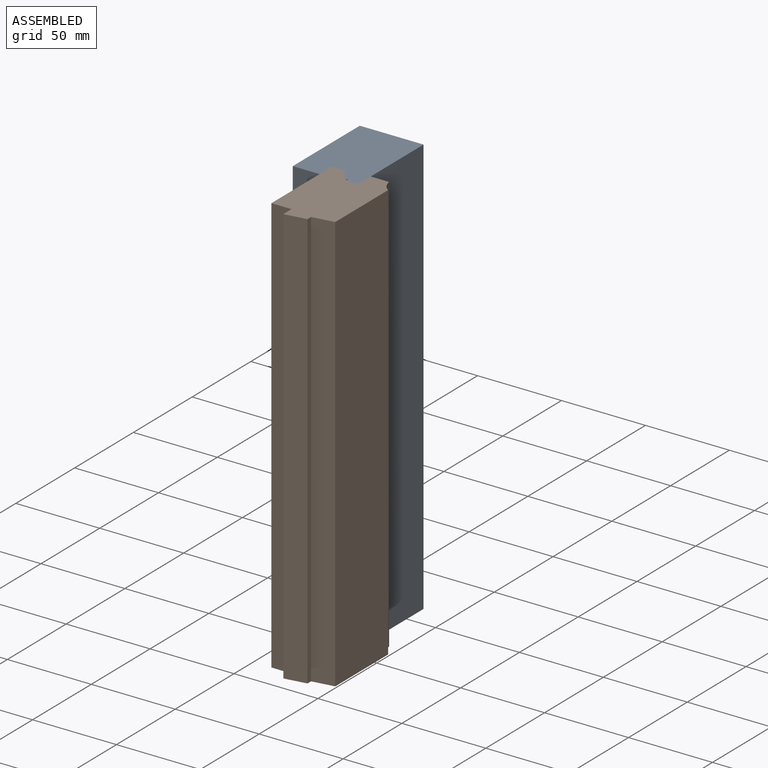
[diagram: assembled view]
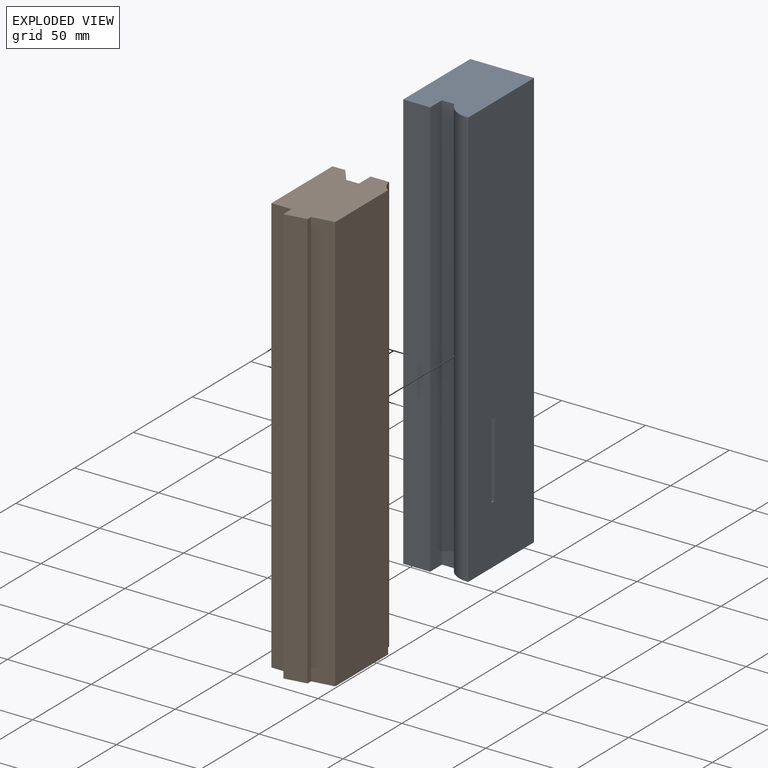
[diagram: exploded view]
GUIDED TOUR — FREECAD ASSEMBLY "assembly"

This assembly has 2 components, labeled P0..P1 below (a component is one placed body or linked part; the same part can appear more than once), held together by 0 modeled joints plus 1 derived contact edge. A joint is a constraint between two components; its type names the relative motion it leaves free:
  CONTACT — a derived adjacency edge — the two components touch in the source model (clearance under 2% of the assembly's diagonal); it is measured from the geometry, not a modeled constraint.
Axis/direction vectors are unit vectors and 'through' points are millimeter coordinates, both in the assembly's world frame.

MATES
  1. CONTACT "contact_0_1": P0 <-> P1, contact direction (0.000, -1.000, 0.000) through (30.72, 2.19, 0.00) mm (derived from contact, not a modeled constraint)

ASSEMBLY ORDER
  1. P1 — the base component [order verified]
  2. P0 [order verified]
Order-tag legend:
  [order verified] — this step's position reverses a verified removal order: the component was checked to insert without passing through the ones already placed.

Of the 2 components, 2 carry a construction recipe — the FreeCAD feature program (sketches with constraints, then the solid features that consume them) that regenerates the part from scratch, quoted from this document or from the linked companion document it references; the rest are supplied as boundary geometry only. The tour below walks the components in assembly order: each is shown spotlighted twice — in the assembled view, then in the exploded view, where a leader line traces a displaced component back to its assembled socket (components that stay in place when exploded have no leader line; saturated green if recipe-attached, orange if geometry-only; every other component desaturated gray) — followed by its recipe or geometry summary and the mates that hold it.
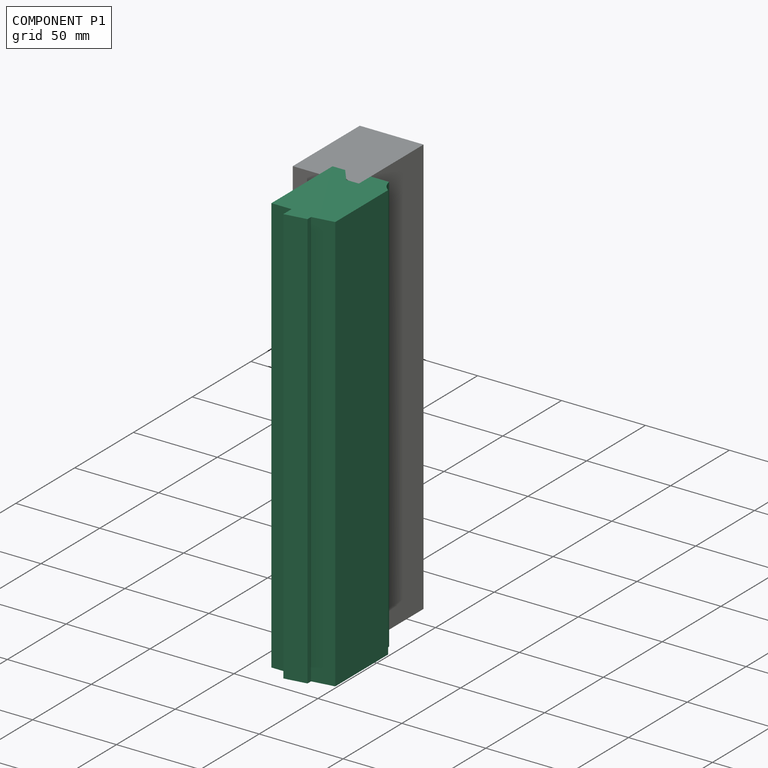
[diagram: component P1 — assembled]
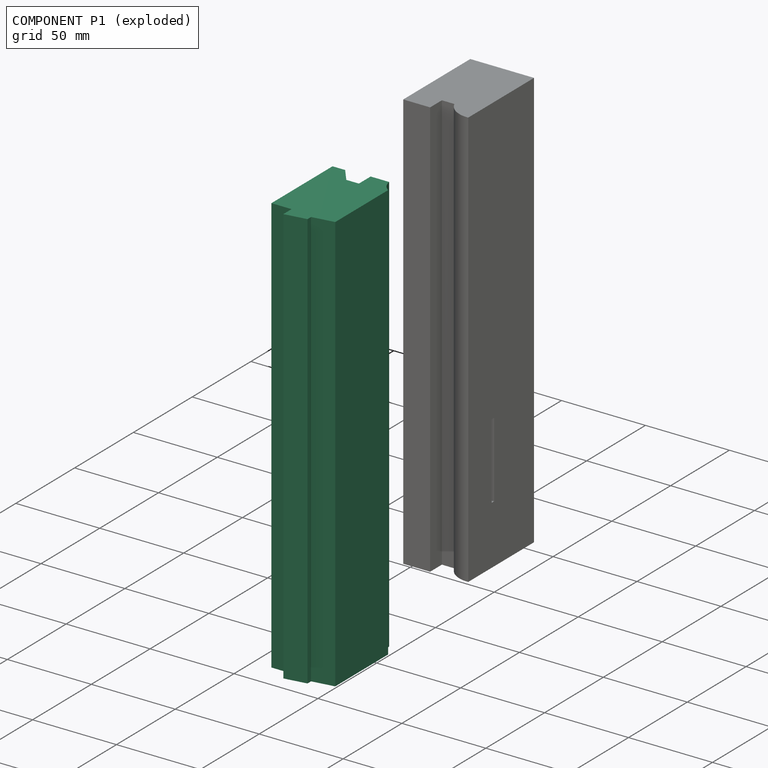
[diagram: component P1 — exploded]
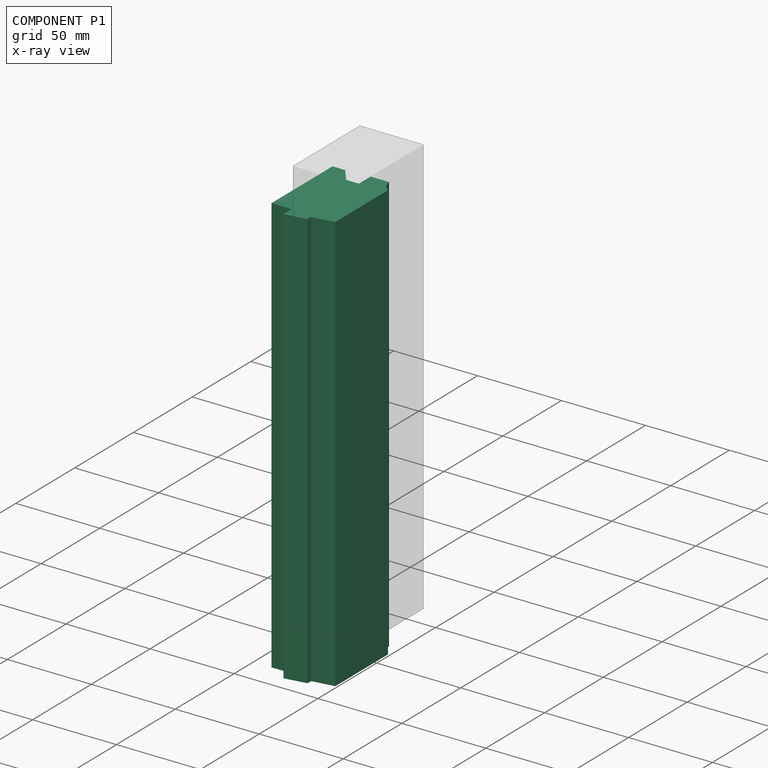
[diagram: component P1 — x-ray view]
COMPONENT P1 — recipe-attached ("fensterrahmen", a linked part whose construction recipe lives in a companion FreeCAD document of the same project; that document's serialized recipe follows).
Held by: resting contact with P0 (derived edge).
Construction recipe (the companion document, serialized — sketch geometry with constraints, then the solid features built on it; lengths are millimeters unless a unit is written):

FCSTD DOCUMENT  (FreeCAD 2022.709R28846 (Git))
Label: fensterrahmen_hinternute
License: All rights reserved
LicenseURL: http://en.wikipedia.org/wiki/All_rights_reserved
objects: Sketcher::SketchObject×2, PartDesign::Pad×1, PartDesign::Pocket×1, PartDesign::Body×1
note: 9 computed .brp shape members not serialized (recipe doc carries the construction recipe); baked Part::Feature solids carry a one-line shape summary decoded from their .brp

FEATURE [Sketcher::SketchObject] Sketch
  ArcFitTolerance = 1e-06
  AttachmentSupport = -> [XY_Plane]
  FullyConstrained = true
  MapMode = 5
  Support = -> [XY_Plane]
  TreeRank = 13
  sketch-geometry (13):
    g0: LineSegment StartX=0 StartY=0 StartZ=0 EndX=7.5 EndY=0 EndZ=0
    g1: LineSegment StartX=7.5 StartY=0 StartZ=0 EndX=14.5 EndY=-9 EndZ=0
    g2: LineSegment StartX=14.5 StartY=-9 StartZ=0 EndX=22 EndY=-9 EndZ=0
    g3: LineSegment StartX=22 StartY=-9 StartZ=0 EndX=22 EndY=1 EndZ=0
    g4: LineSegment StartX=22 StartY=1 StartZ=0 EndX=33 EndY=1 EndZ=0
    g5: ArcOfCircle CenterX=44.8568 CenterY=2.84803 CenterZ=0 NormalX=0 NormalY=0 NormalZ=1 AngleXU=0 Radius=12 StartAngle=3.29621 EndAngle=4.10417
    g6: LineSegment StartX=38 StartY=-7 StartZ=0 EndX=38 EndY=-52 EndZ=0
    g7: LineSegment StartX=38 StartY=-52 StartZ=0 EndX=25 EndY=-54 EndZ=0
    g8: LineSegment StartX=25 StartY=-54 StartZ=0 EndX=25 EndY=-57 EndZ=0
    g9: LineSegment StartX=25 StartY=-57 StartZ=0 EndX=12 EndY=-59 EndZ=0
    g10: LineSegment StartX=12 StartY=-59 StartZ=0 EndX=12 EndY=-52 EndZ=0
    g11: LineSegment StartX=12 StartY=-52 StartZ=0 EndX=0 EndY=-52 EndZ=0
    g12: LineSegment StartX=0 StartY=-52 StartZ=0 EndX=0 EndY=0 EndZ=0
  constraints (39):
    c: Coincident(g-1,g0)
    c: PointOnObject(g0,g-1)
    c: Coincident(g0,g1)
    c: Coincident(g1,g2)
    c: Horizontal(g2)
    c: Coincident(g2,g3)
    c: Vertical(g3)
    c: Coincident(g3,g4)
    c: Horizontal(g4)
    c: Coincident(g5,g6)
    c: Vertical(g6)
    c: Coincident(g6,g7)
    c: Coincident(g7,g8)
    c: Vertical(g8)
    c: Coincident(g8,g9)
    c: Coincident(g9,g10)
    c: Vertical(g10)
    c: Coincident(g10,g11)
    c: PointOnObject(g11,g-2)
    c: Horizontal(g11)
    c: Coincident(g11,g12)
    c: Coincident(g12,g0)
    c: DistanceX(g11,g11) = 12
    c: DistanceX(g9,g9) = 13
    c: DistanceX(g0,g0) = 7.5
    c: Equal(g2,g0)
    c: DistanceY(g0,g3) = 1
    c: Radius(g5) = 12
    c: DistanceX(g4,g5) = 5
    c: Coincident(g5,g4)
    c: DistanceY(g5,g4) = 8
    c: DistanceY(g6,g5) = 45
    c: DistanceY(g7,g6) = 2
    c: DistanceY(g8,g7) = 3
    c: DistanceY(g9,g8) = 2
    c: DistanceX(g0,g3) = 22
    c: DistanceX(g7,g6) = 13
    c: DistanceY(g9,g10) = 7
    c: DistanceY(g2,g3) = 10
FEATURE [PartDesign::Pad] Pad
  ClaimChildren = false
  Direction = (1,1,1)
  Fit = 0
  FitJoin = 0
  InnerFit = 0
  InnerFitJoin = 0
  InnerTaperAngle = 0
  InnerTaperAngleRev = 0
  Length = 250
  Length2 = 100
  Linearize = true
  NewSolid = false
  Profile = -> Sketch
  Suppress = false
  TreeRank = 14
  Type = 0
  _ProfileBasedVersion = 1
FEATURE [Sketcher::SketchObject] Sketch001
  ArcFitTolerance = 1e-06
  AttachmentSupport = -> [Pad]
  ExternalGeometry = -> [Pad]
  FullyConstrained = true
  MapMode = 5
  Placement = pos=(0,1,0) rot=(0,0.707107,0.707107;3.14159rad)
  Support = -> [Pad]
  TreeRank = 15
  sketch-geometry (4):
    g0: LineSegment StartX=-22 StartY=125 StartZ=0 EndX=-24 EndY=125 EndZ=0
    g1: LineSegment StartX=-24 StartY=125 StartZ=0 EndX=-24 EndY=80 EndZ=0
    g2: LineSegment StartX=-24 StartY=80 StartZ=0 EndX=-22 EndY=80 EndZ=0
    g3: LineSegment StartX=-22 StartY=80 StartZ=0 EndX=-22 EndY=125 EndZ=0
  constraints (12):
    c: Coincident(g0,g1)
    c: Coincident(g1,g2)
    c: Coincident(g2,g3)
    c: Coincident(g3,g0)
    c: Horizontal(g0)
    c: Horizontal(g2)
    c: Vertical(g1)
    c: Vertical(g3)
    c: DistanceY(g-1,g0) = 125
    c: DistanceX(g2,g2) = 2
    c: DistanceY(g1,g1) = 45
    c: PointOnObject(g2,g-3)
FEATURE [PartDesign::Pocket] Pocket
  BaseFeature = -> Pad
  ClaimChildren = false
  Fit = 0
  FitJoin = 0
  InnerFit = 0
  InnerFitJoin = 0
  InnerTaperAngle = 0
  InnerTaperAngleRev = 0
  Length = 20
  Length2 = 100
  Linearize = true
  NewSolid = false
  Profile = -> Sketch001
  Refine = true
  Suppress = false
  TreeRank = 16
  Type = 0
  _ProfileBasedVersion = 1
FEATURE [PartDesign::Body] Body
  AutoGroupSolids = false
  ClaimAllChildren = false
  ExportMode = 0
  Group = -> [Sketch,Pad,Sketch001,Pocket]
  Origin = -> Origin
  Tip = -> Pocket
  TreeRank = 12
  _ExportChildren = -> [Pad,Pocket]
  _GroupVersion = 1
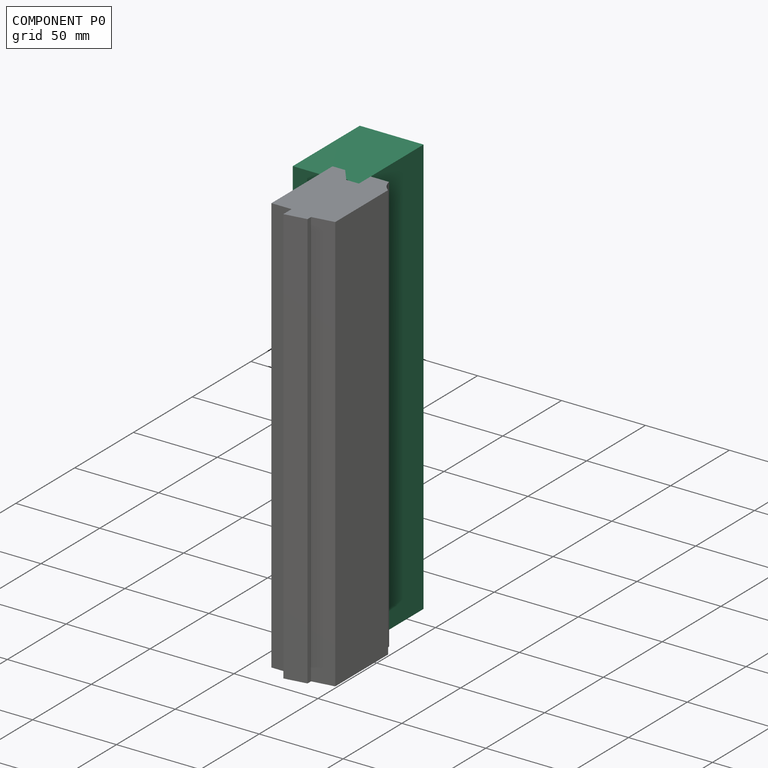
[diagram: component P0 — assembled]
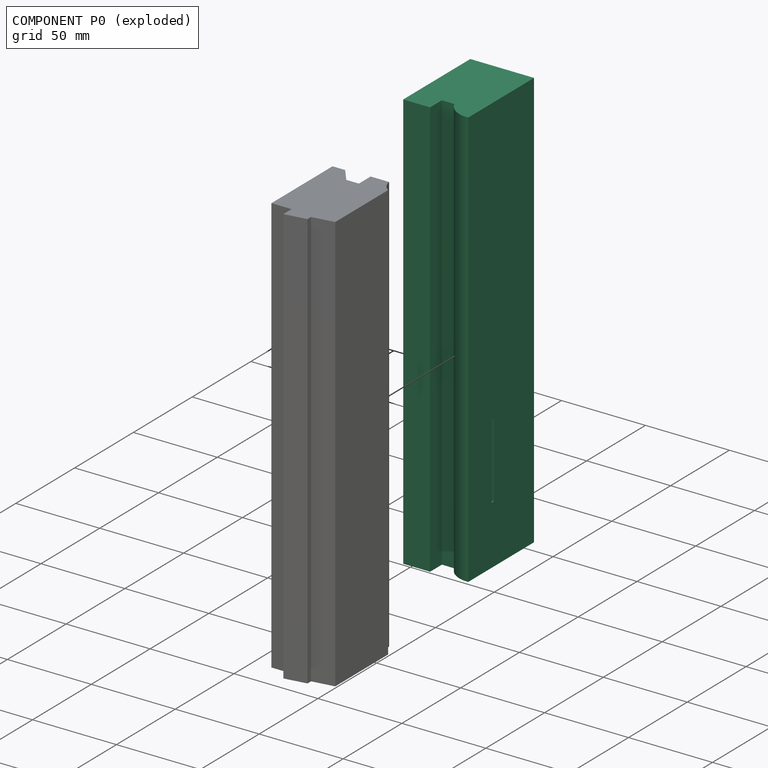
[diagram: component P0 — exploded]
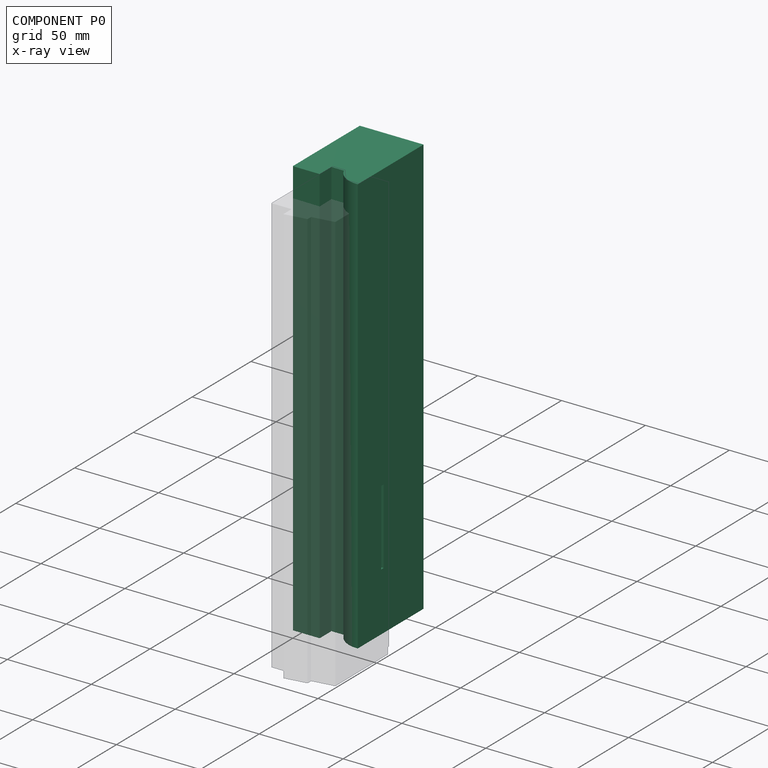
[diagram: component P0 — x-ray view]
COMPONENT P0 — recipe-attached ("blendrahmen", a linked part whose construction recipe lives in a companion FreeCAD document of the same project; that document's serialized recipe follows).
Held by: resting contact with P1 (derived edge).
Construction recipe (the companion document, serialized — sketch geometry with constraints, then the solid features built on it; lengths are millimeters unless a unit is written):

FCSTD DOCUMENT  (FreeCAD 2022.709R28846 (Git))
Label: blendrahmen_hinternute
License: All rights reserved
LicenseURL: http://en.wikipedia.org/wiki/All_rights_reserved
objects: Sketcher::SketchObject×2, PartDesign::Pad×1, PartDesign::Pocket×1, PartDesign::Body×1
note: 9 computed .brp shape members not serialized (recipe doc carries the construction recipe); baked Part::Feature solids carry a one-line shape summary decoded from their .brp

FEATURE [Sketcher::SketchObject] Sketch
  ArcFitTolerance = 1e-06
  AttachmentSupport = -> [XY_Plane]
  FullyConstrained = true
  MapMode = 5
  Support = -> [XY_Plane]
  TreeRank = 13
  sketch-geometry (7):
    g0: LineSegment StartX=0 StartY=0 StartZ=0 EndX=0 EndY=57 EndZ=0
    g1: LineSegment StartX=0 StartY=57 StartZ=0 EndX=38 EndY=57 EndZ=0
    g2: LineSegment StartX=38 StartY=57 StartZ=0 EndX=38 EndY=1 EndZ=0
    g3: ArcOfCircle CenterX=37.2558 CenterY=15.9815 CenterZ=0 NormalX=0 NormalY=0 NormalZ=1 AngleXU=0 Radius=15 StartAngle=3.55177 EndAngle=4.76202
    g4: LineSegment StartX=23.5 StartY=10 StartZ=0 EndX=16 EndY=10 EndZ=0
    g5: LineSegment StartX=16 StartY=10 StartZ=0 EndX=16 EndY=0 EndZ=0
    g6: LineSegment StartX=16 StartY=0 StartZ=0 EndX=0 EndY=0 EndZ=0
  constraints (21):
    c: Coincident(g-1,g0)
    c: PointOnObject(g0,g-2)
    c: Coincident(g0,g1)
    c: Horizontal(g1)
    c: Coincident(g1,g2)
    c: Vertical(g2)
    c: Horizontal(g4)
    c: Coincident(g4,g5)
    c: PointOnObject(g5,g-1)
    c: Vertical(g5)
    c: Coincident(g5,g6)
    c: Coincident(g6,g0)
    c: DistanceY(g0,g0) = 57
    c: DistanceX(g1,g1) = 38
    c: Coincident(g3,g4)
    c: DistanceX(g6,g6) = 16
    c: DistanceY(g5,g5) = 10
    c: DistanceX(g4,g4) = 7.5
    c: Radius(g3) = 15
    c: Coincident(g2,g3)
    c: DistanceY(g0,g2) = 1
FEATURE [PartDesign::Pad] Pad
  ClaimChildren = false
  Direction = (1,1,1)
  Fit = 0
  FitJoin = 0
  InnerFit = 0
  InnerFitJoin = 0
  InnerTaperAngle = 0
  InnerTaperAngleRev = 0
  Length = 250
  Length2 = 100
  Linearize = true
  NewSolid = false
  Profile = -> Sketch
  Suppress = false
  TreeRank = 14
  Type = 0
  _ProfileBasedVersion = 1
FEATURE [Sketcher::SketchObject] Sketch001
  ArcFitTolerance = 1e-06
  AttachmentSupport = -> [Pad]
  FullyConstrained = true
  MapMode = 5
  Placement = pos=(38,0,0) rot=(0.57735,0.57735,0.57735;2.0944rad)
  Support = -> [Pad]
  TreeRank = 15
  sketch-geometry (4):
    g0: LineSegment StartX=21 StartY=80 StartZ=0 EndX=23 EndY=80 EndZ=0
    g1: LineSegment StartX=23 StartY=80 StartZ=0 EndX=23 EndY=35 EndZ=0
    g2: LineSegment StartX=23 StartY=35 StartZ=0 EndX=21 EndY=35 EndZ=0
    g3: LineSegment StartX=21 StartY=35 StartZ=0 EndX=21 EndY=80 EndZ=0
  constraints (12):
    c: Coincident(g0,g1)
    c: Coincident(g1,g2)
    c: Coincident(g2,g3)
    c: Coincident(g3,g0)
    c: Horizontal(g0)
    c: Horizontal(g2)
    c: Vertical(g1)
    c: Vertical(g3)
    c: DistanceY(g1,g1) = 45
    c: DistanceX(g2,g2) = 2
    c: DistanceY(g-1,g2) = 35
    c: DistanceX(g-1,g2) = 21
FEATURE [PartDesign::Pocket] Pocket
  BaseFeature = -> Pad
  ClaimChildren = false
  Fit = 0
  FitJoin = 0
  InnerFit = 0
  InnerFitJoin = 0
  InnerTaperAngle = 0
  InnerTaperAngleRev = 0
  Length = 20
  Length2 = 100
  Linearize = true
  NewSolid = false
  Profile = -> Sketch001
  Refine = true
  Suppress = false
  TreeRank = 16
  Type = 0
  _ProfileBasedVersion = 1
FEATURE [PartDesign::Body] Body
  AutoGroupSolids = false
  ClaimAllChildren = false
  ExportMode = 0
  Group = -> [Sketch,Pad,Sketch001,Pocket]
  Origin = -> Origin
  Tip = -> Pocket
  TreeRank = 12
  _ExportChildren = -> [Pad,Pocket]
  _GroupVersion = 1
PROVENANCE & LICENSES
Assembly and component geometry: a FreeCAD (.FCStd) document from a public repository crawl; components, placements and joints were extracted with FreeCAD and each solid tessellated.
Construction recipes: the document's own serialized feature recipes (and, for linked parts, the recipes of companion documents from the same project).
License: as declared in the source repository (recorded in the dataset sidecar).
Joints: native FreeCAD joints and A2plus constraints are mapped to standard mate types; edges marked 'derived from contact' connect touching components and are measured from the geometry, not modeled.
Verification: 2 of this assembly's 2 components carry a construction recipe (2 from linked companion documents in the same project); the rest are geometry-only. Every component's tessellation passed the extraction mesh gates (mesh-volume checksum against the B-rep where available, bounding-box inflation <= 2%).
Renders: orthographic iso camera (az 35 / el 25); the floor grid conveys scale (grid pitch printed in each image; no ruler). In the exploded view each component is displaced by its stored offset vector: the offsets alone carry the explosion direction (mate normal/axis signs are not orientation cues and do not encode it), and separation distances are assigned per mate-chain, not proportionally to assembly-order depth.
